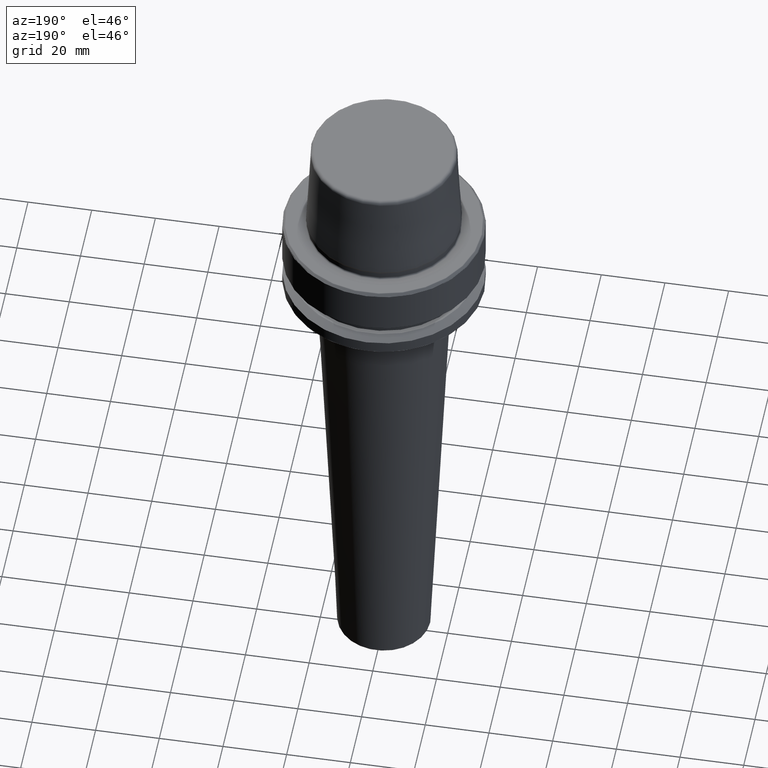
[diagram: clean part render]
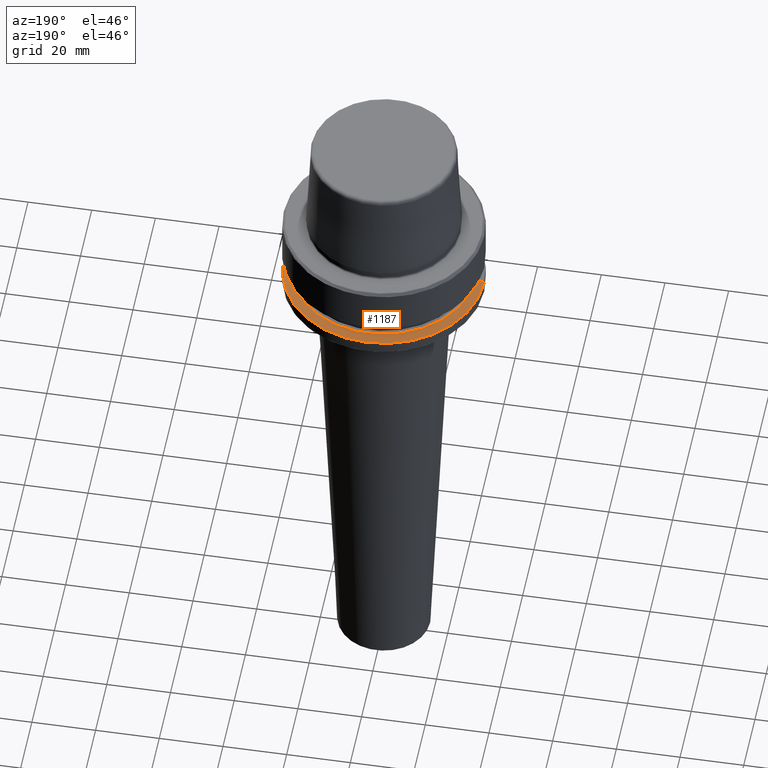
[diagram: same view with one face highlighted and labeled with its STEP entity id]
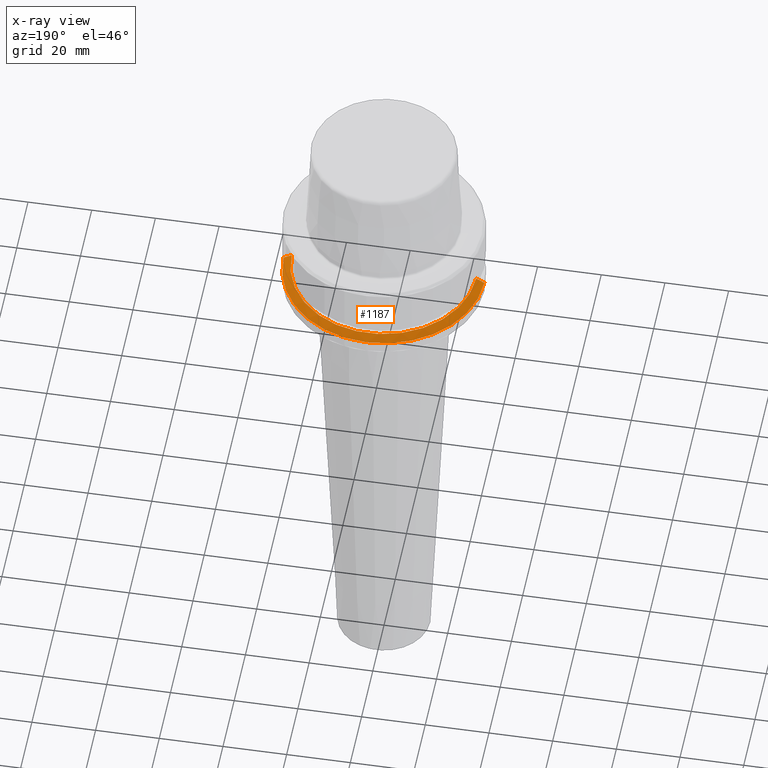
[diagram: x-ray of the same camera — body ghosted, the highlighted face saturated]
A machine part, auxiliary view. The second image highlights one B-rep face of the part: STEP entity #1187.
The next image is the same camera in x-ray: the body ghosted, the highlighted face saturated — about 0% of this face is hidden behind the body in this view.
In plain terms, the highlighted conical surface has half-angle 60 deg.
Its self-contained STEP definition (entity closure, byte-faithful):
#23 = ORIENTED_EDGE ( 'NONE', *, *, #471, .T. ) ;
#31 = ORIENTED_EDGE ( 'NONE', *, *, #1240, .T. ) ;
#40 = CARTESIAN_POINT ( 'NONE',  ( 31.50000000000000000, 3.857637417314162700E-015, -21.37749907475931700 ) ) ;
#123 = CARTESIAN_POINT ( 'NONE',  ( -31.50000000000000000, 0.0000000000000000000, -21.37749907475931700 ) ) ;
#136 = LINE ( 'NONE', #40, #1150 ) ;
#139 = AXIS2_PLACEMENT_3D ( 'NONE', #555, #1238, #665 ) ;
#310 = EDGE_CURVE ( 'NONE', #1048, #312, #1224, .T. ) ;
#312 = VERTEX_POINT ( 'NONE', #806 ) ;
#366 = EDGE_CURVE ( 'NONE', #380, #1048, #515, .T. ) ;
#380 = VERTEX_POINT ( 'NONE', #791 ) ;
#413 = DIRECTION ( 'NONE',  ( -0.8660254037844410400, 0.0000000000000000000, -0.4999999999999958400 ) ) ;
#444 = ORIENTED_EDGE ( 'NONE', *, *, #310, .F. ) ;
#450 = CARTESIAN_POINT ( 'NONE',  ( 0.0000000000000000000, 0.0000000000000000000, -21.37749907475931700 ) ) ;
#471 = EDGE_CURVE ( 'NONE', #380, #1164, #136, .T. ) ;
#515 = CIRCLE ( 'NONE', #572, 28.94089653438085100 ) ;
#555 = CARTESIAN_POINT ( 'NONE',  ( 0.0000000000000000000, 0.0000000000000000000, -21.37749907475931700 ) ) ;
#557 = FACE_OUTER_BOUND ( 'NONE', #943, .T. ) ;
#572 = AXIS2_PLACEMENT_3D ( 'NONE', #1003, #1028, #1231 ) ;
#627 = AXIS2_PLACEMENT_3D ( 'NONE', #450, #1198, #1031 ) ;
#645 = CARTESIAN_POINT ( 'NONE',  ( -28.94089653438085100, 0.0000000000000000000, -19.90000000000001600 ) ) ;
#665 = DIRECTION ( 'NONE',  ( 1.000000000000000000, 0.0000000000000000000, 0.0000000000000000000 ) ) ;
#695 = ORIENTED_EDGE ( 'NONE', *, *, #366, .F. ) ;
#713 = CIRCLE ( 'NONE', #139, 31.50000000000000000 ) ;
#736 = VECTOR ( 'NONE', #413, 1000.000000000000100 ) ;
#791 = CARTESIAN_POINT ( 'NONE',  ( 28.94089653438085100, 3.700937523921292900E-015, -19.90000000000001600 ) ) ;
#806 = CARTESIAN_POINT ( 'NONE',  ( -31.50000000000000000, 3.857637417314162700E-015, -21.37749907475931700 ) ) ;
#906 = CARTESIAN_POINT ( 'NONE',  ( 31.50000000000000000, 0.0000000000000000000, -21.37749907475931700 ) ) ;
#943 = EDGE_LOOP ( 'NONE', ( #695, #23, #31, #444 ) ) ;
#1003 = CARTESIAN_POINT ( 'NONE',  ( 0.0000000000000000000, 0.0000000000000000000, -19.90000000000001600 ) ) ;
#1028 = DIRECTION ( 'NONE',  ( -0.0000000000000000000, -0.0000000000000000000, 1.000000000000000000 ) ) ;
#1031 = DIRECTION ( 'NONE',  ( -1.000000000000000000, 0.0000000000000000000, 0.0000000000000000000 ) ) ;
#1048 = VERTEX_POINT ( 'NONE', #645 ) ;
#1050 = CONICAL_SURFACE ( 'NONE', #627, 31.50000000000000000, 1.047197551196602500 ) ;
#1150 = VECTOR ( 'NONE', #1204, 1000.000000000000100 ) ;
#1164 = VERTEX_POINT ( 'NONE', #906 ) ;
#1187 = ADVANCED_FACE ( 'NONE', ( #557 ), #1050, .T. ) ;
#1198 = DIRECTION ( 'NONE',  ( 0.0000000000000000000, 0.0000000000000000000, -1.000000000000000000 ) ) ;
#1204 = DIRECTION ( 'NONE',  ( 0.8660254037844410400, 1.060575238724909700E-016, -0.4999999999999958400 ) ) ;
#1224 = LINE ( 'NONE', #123, #736 ) ;
#1231 = DIRECTION ( 'NONE',  ( 1.000000000000000000, 0.0000000000000000000, 0.0000000000000000000 ) ) ;
#1238 = DIRECTION ( 'NONE',  ( -0.0000000000000000000, -0.0000000000000000000, 1.000000000000000000 ) ) ;
#1240 = EDGE_CURVE ( 'NONE', #1164, #312, #713, .T. ) ;